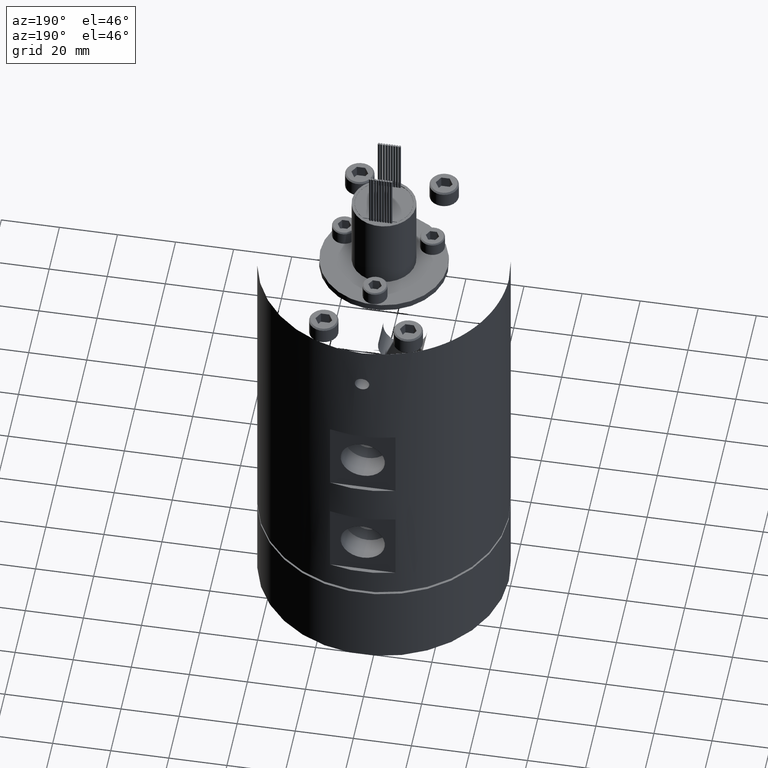
[diagram: clean part render]
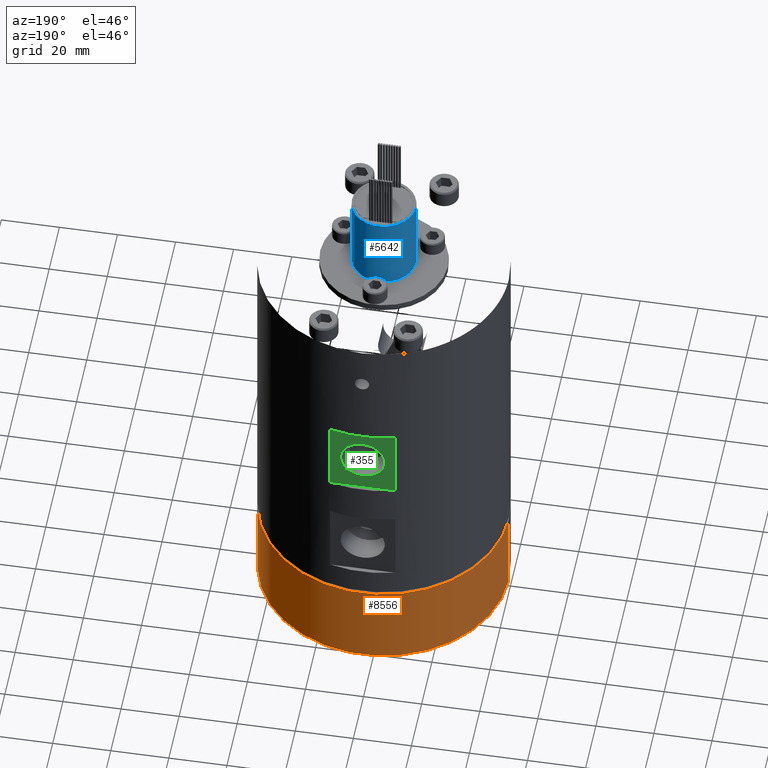
[diagram: same view with three faces highlighted in distinct colors, each labeled with its STEP entity id]
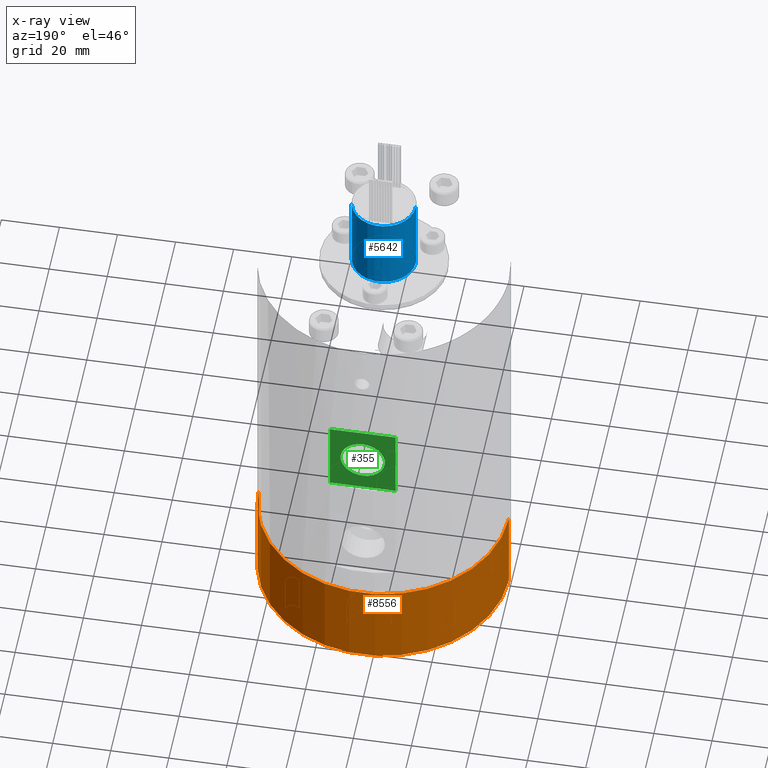
[diagram: x-ray of the same camera — body ghosted, the three highlighted faces saturated]
A machine part, auxiliary view with three faces highlighted in distinct colors.
The next image is the same camera in x-ray (body ghosted, the three faces saturated) — at least one of them is partly hidden behind the body in this view.
Their STEP definitions:

[orange] entity #8556 — the highlighted cylindrical surface (partial cylindrical patch) has radius 43 mm, axis along (-0, -0, -1).
#318 = CARTESIAN_POINT ( 'NONE',  ( 43.00000000000000000, 5.265981236333618500E-015, 30.00000000000000000 ) ) ;
#376 = AXIS2_PLACEMENT_3D ( 'NONE', #6539, #2420, #7245 ) ;
#399 = DIRECTION ( 'NONE',  ( 0.0000000000000000000, 0.0000000000000000000, 1.000000000000000000 ) ) ;
#510 = VERTEX_POINT ( 'NONE', #1436 ) ;
#771 = CYLINDRICAL_SURFACE ( 'NONE', #5526, 43.00000000000000000 ) ;
#1167 = EDGE_LOOP ( 'NONE', ( #3262, #3686, #8413, #2820 ) ) ;
#1436 = CARTESIAN_POINT ( 'NONE',  ( -43.00000000000000000, 0.0000000000000000000, 30.00000000000000000 ) ) ;
#1478 = VECTOR ( 'NONE', #5209, 1000.000000000000000 ) ;
#1890 = CARTESIAN_POINT ( 'NONE',  ( -43.00000000000000000, 0.0000000000000000000, 30.00000000000000000 ) ) ;
#2420 = DIRECTION ( 'NONE',  ( 0.0000000000000000000, 0.0000000000000000000, 1.000000000000000000 ) ) ;
#2596 = DIRECTION ( 'NONE',  ( -0.0000000000000000000, -0.0000000000000000000, -1.000000000000000000 ) ) ;
#2670 = CARTESIAN_POINT ( 'NONE',  ( 43.00000000000000000, 5.265981236333618500E-015, 30.00000000000000000 ) ) ;
#2713 = VERTEX_POINT ( 'NONE', #6260 ) ;
#2820 = ORIENTED_EDGE ( 'NONE', *, *, #4099, .F. ) ;
#3262 = ORIENTED_EDGE ( 'NONE', *, *, #6507, .F. ) ;
#3357 = LINE ( 'NONE', #318, #1478 ) ;
#3686 = ORIENTED_EDGE ( 'NONE', *, *, #9033, .T. ) ;
#4099 = EDGE_CURVE ( 'NONE', #510, #7111, #5672, .T. ) ;
#4367 = AXIS2_PLACEMENT_3D ( 'NONE', #4596, #399, #5279 ) ;
#4596 = CARTESIAN_POINT ( 'NONE',  ( 0.0000000000000000000, 0.0000000000000000000, 0.0000000000000000000 ) ) ;
#5062 = CIRCLE ( 'NONE', #376, 43.00000000000000000 ) ;
#5209 = DIRECTION ( 'NONE',  ( -0.0000000000000000000, -0.0000000000000000000, -1.000000000000000000 ) ) ;
#5279 = DIRECTION ( 'NONE',  ( 1.000000000000000000, 0.0000000000000000000, 0.0000000000000000000 ) ) ;
#5474 = VECTOR ( 'NONE', #2596, 1000.000000000000000 ) ;
#5526 = AXIS2_PLACEMENT_3D ( 'NONE', #5949, #7339, #5919 ) ;
#5672 = LINE ( 'NONE', #1890, #5474 ) ;
#5919 = DIRECTION ( 'NONE',  ( -1.000000000000000000, 0.0000000000000000000, 0.0000000000000000000 ) ) ;
#5949 = CARTESIAN_POINT ( 'NONE',  ( 0.0000000000000000000, 0.0000000000000000000, 30.00000000000000000 ) ) ;
#6260 = CARTESIAN_POINT ( 'NONE',  ( 43.00000000000000000, 5.265981236333618500E-015, 0.0000000000000000000 ) ) ;
#6507 = EDGE_CURVE ( 'NONE', #8655, #510, #5062, .T. ) ;
#6525 = FACE_OUTER_BOUND ( 'NONE', #1167, .T. ) ;
#6539 = CARTESIAN_POINT ( 'NONE',  ( 0.0000000000000000000, 0.0000000000000000000, 30.00000000000000000 ) ) ;
#7111 = VERTEX_POINT ( 'NONE', #8596 ) ;
#7245 = DIRECTION ( 'NONE',  ( 1.000000000000000000, 0.0000000000000000000, 0.0000000000000000000 ) ) ;
#7339 = DIRECTION ( 'NONE',  ( -0.0000000000000000000, -0.0000000000000000000, -1.000000000000000000 ) ) ;
#7627 = EDGE_CURVE ( 'NONE', #2713, #7111, #7970, .T. ) ;
#7970 = CIRCLE ( 'NONE', #4367, 43.00000000000000000 ) ;
#8413 = ORIENTED_EDGE ( 'NONE', *, *, #7627, .T. ) ;
#8556 = ADVANCED_FACE ( 'NONE', ( #6525 ), #771, .T. ) ;
#8596 = CARTESIAN_POINT ( 'NONE',  ( -43.00000000000000000, 0.0000000000000000000, 0.0000000000000000000 ) ) ;
#8655 = VERTEX_POINT ( 'NONE', #2670 ) ;
#9033 = EDGE_CURVE ( 'NONE', #8655, #2713, #3357, .T. ) ;

[blue] entity #5642 — the highlighted cylindrical surface (edge-blend (fillet) strip) has radius 11 mm, axis along (-0, -0, -1).
#320 = VERTEX_POINT ( 'NONE', #8252 ) ;
#357 = ORIENTED_EDGE ( 'NONE', *, *, #393, .T. ) ;
#393 = EDGE_CURVE ( 'NONE', #6244, #4986, #7392, .T. ) ;
#491 = AXIS2_PLACEMENT_3D ( 'NONE', #942, #5801, #1652 ) ;
#942 = CARTESIAN_POINT ( 'NONE',  ( 0.0000000000000000000, 0.0000000000000000000, 149.4000000000000300 ) ) ;
#1354 = CARTESIAN_POINT ( 'NONE',  ( 11.00000000000000000, 1.347111479062088400E-015, 176.5000000000000300 ) ) ;
#1555 = CARTESIAN_POINT ( 'NONE',  ( 11.00000000000000000, 1.347111479062088400E-015, 149.4000000000000300 ) ) ;
#1652 = DIRECTION ( 'NONE',  ( 1.000000000000000000, 0.0000000000000000000, 0.0000000000000000000 ) ) ;
#1940 = DIRECTION ( 'NONE',  ( 0.0000000000000000000, 0.0000000000000000000, 1.000000000000000000 ) ) ;
#2158 = CYLINDRICAL_SURFACE ( 'NONE', #3898, 11.00000000000000000 ) ;
#2900 = CARTESIAN_POINT ( 'NONE',  ( 0.0000000000000000000, 0.0000000000000000000, 176.5000000000000300 ) ) ;
#3861 = EDGE_CURVE ( 'NONE', #5813, #320, #3974, .T. ) ;
#3898 = AXIS2_PLACEMENT_3D ( 'NONE', #2900, #4287, #8388 ) ;
#3927 = CARTESIAN_POINT ( 'NONE',  ( -11.00000000000000000, 0.0000000000000000000, 176.5000000000000300 ) ) ;
#3974 = LINE ( 'NONE', #3927, #7416 ) ;
#4287 = DIRECTION ( 'NONE',  ( -0.0000000000000000000, -0.0000000000000000000, -1.000000000000000000 ) ) ;
#4303 = CIRCLE ( 'NONE', #491, 11.00000000000000000 ) ;
#4525 = CARTESIAN_POINT ( 'NONE',  ( -11.00000000000000000, 0.0000000000000000000, 176.5000000000000300 ) ) ;
#4616 = EDGE_CURVE ( 'NONE', #6244, #5813, #8276, .T. ) ;
#4986 = VERTEX_POINT ( 'NONE', #1555 ) ;
#5642 = ADVANCED_FACE ( 'NONE', ( #8114 ), #2158, .T. ) ;
#5762 = VECTOR ( 'NONE', #6850, 1000.000000000000000 ) ;
#5801 = DIRECTION ( 'NONE',  ( -0.0000000000000000000, -0.0000000000000000000, -1.000000000000000000 ) ) ;
#5813 = VERTEX_POINT ( 'NONE', #4525 ) ;
#6074 = CARTESIAN_POINT ( 'NONE',  ( 0.0000000000000000000, 0.0000000000000000000, 176.5000000000000300 ) ) ;
#6244 = VERTEX_POINT ( 'NONE', #1354 ) ;
#6453 = AXIS2_PLACEMENT_3D ( 'NONE', #6074, #1940, #6776 ) ;
#6497 = ORIENTED_EDGE ( 'NONE', *, *, #7082, .F. ) ;
#6776 = DIRECTION ( 'NONE',  ( 1.000000000000000000, 0.0000000000000000000, 0.0000000000000000000 ) ) ;
#6850 = DIRECTION ( 'NONE',  ( -0.0000000000000000000, -0.0000000000000000000, -1.000000000000000000 ) ) ;
#7082 = EDGE_CURVE ( 'NONE', #320, #4986, #4303, .T. ) ;
#7392 = LINE ( 'NONE', #8250, #5762 ) ;
#7416 = VECTOR ( 'NONE', #8753, 1000.000000000000000 ) ;
#8101 = EDGE_LOOP ( 'NONE', ( #9027, #357, #6497, #8797 ) ) ;
#8114 = FACE_OUTER_BOUND ( 'NONE', #8101, .T. ) ;
#8250 = CARTESIAN_POINT ( 'NONE',  ( 11.00000000000000000, 1.347111479062088400E-015, 176.5000000000000300 ) ) ;
#8252 = CARTESIAN_POINT ( 'NONE',  ( -11.00000000000000000, 0.0000000000000000000, 149.4000000000000300 ) ) ;
#8276 = CIRCLE ( 'NONE', #6453, 11.00000000000000000 ) ;
#8388 = DIRECTION ( 'NONE',  ( -1.000000000000000000, 0.0000000000000000000, 0.0000000000000000000 ) ) ;
#8753 = DIRECTION ( 'NONE',  ( -0.0000000000000000000, -0.0000000000000000000, -1.000000000000000000 ) ) ;
#8797 = ORIENTED_EDGE ( 'NONE', *, *, #3861, .F. ) ;
#9027 = ORIENTED_EDGE ( 'NONE', *, *, #4616, .F. ) ;

[green] entity #355 — the highlighted planar face has unit normal (0, 1, 0).
#355 = ADVANCED_FACE ( 'NONE', ( #651, #7619 ), #3454, .T. ) ;
#493 = CARTESIAN_POINT ( 'NONE',  ( 11.25833024919767300, 41.50000000000000000, 106.3999999999999900 ) ) ;
#646 = DIRECTION ( 'NONE',  ( 0.0000000000000000000, -0.0000000000000000000, 1.000000000000000000 ) ) ;
#651 = FACE_BOUND ( 'NONE', #3522, .T. ) ;
#702 = CARTESIAN_POINT ( 'NONE',  ( -45.75677193840251500, 41.50000000000000000, 80.40000000000000600 ) ) ;
#705 = CARTESIAN_POINT ( 'NONE',  ( -5.337610695313253800E-015, 41.50000000000000000, 101.0249999999999900 ) ) ;
#1148 = EDGE_CURVE ( 'NONE', #6152, #8341, #5233, .T. ) ;
#1490 = ORIENTED_EDGE ( 'NONE', *, *, #6188, .F. ) ;
#1518 = VECTOR ( 'NONE', #6692, 1000.000000000000000 ) ;
#1582 = VERTEX_POINT ( 'NONE', #8184 ) ;
#1773 = LINE ( 'NONE', #702, #1995 ) ;
#1995 = VECTOR ( 'NONE', #8303, 1000.000000000000000 ) ;
#2409 = CARTESIAN_POINT ( 'NONE',  ( -11.25833024919767700, 41.50000000000000000, 147.0000000000000300 ) ) ;
#2570 = LINE ( 'NONE', #2409, #7855 ) ;
#2618 = DIRECTION ( 'NONE',  ( 1.000000000000000000, 0.0000000000000000000, 0.0000000000000000000 ) ) ;
#2771 = CARTESIAN_POINT ( 'NONE',  ( -4.403817510963396700E-015, 41.50000000000000000, 85.77500000000000600 ) ) ;
#2956 = CARTESIAN_POINT ( 'NONE',  ( -5.337610695313253800E-015, 41.50000000000000000, 93.39999999999999100 ) ) ;
#3209 = VECTOR ( 'NONE', #2618, 1000.000000000000000 ) ;
#3270 = VERTEX_POINT ( 'NONE', #3443 ) ;
#3299 = VERTEX_POINT ( 'NONE', #2771 ) ;
#3417 = ORIENTED_EDGE ( 'NONE', *, *, #3537, .T. ) ;
#3427 = CARTESIAN_POINT ( 'NONE',  ( -5.337610695313253800E-015, 41.50000000000000000, 93.39999999999999100 ) ) ;
#3443 = CARTESIAN_POINT ( 'NONE',  ( -11.25833024919767300, 41.50000000000000000, 106.3999999999999900 ) ) ;
#3454 = PLANE ( 'NONE',  #4166 ) ;
#3522 = EDGE_LOOP ( 'NONE', ( #5439, #1490 ) ) ;
#3537 = EDGE_CURVE ( 'NONE', #8341, #1582, #1773, .T. ) ;
#3653 = DIRECTION ( 'NONE',  ( 0.0000000000000000000, 0.0000000000000000000, 1.000000000000000000 ) ) ;
#3750 = EDGE_CURVE ( 'NONE', #1582, #3270, #2570, .T. ) ;
#4116 = DIRECTION ( 'NONE',  ( 0.0000000000000000000, 0.0000000000000000000, 1.000000000000000000 ) ) ;
#4166 = AXIS2_PLACEMENT_3D ( 'NONE', #6182, #4848, #646 ) ;
#4365 = CARTESIAN_POINT ( 'NONE',  ( 11.25833024919768000, 41.50000000000000000, 80.40000000000000600 ) ) ;
#4423 = CIRCLE ( 'NONE', #6305, 7.624999999999992900 ) ;
#4585 = EDGE_CURVE ( 'NONE', #3270, #6152, #4826, .T. ) ;
#4658 = CARTESIAN_POINT ( 'NONE',  ( 11.25833024919767700, 41.50000000000000000, 147.0000000000000300 ) ) ;
#4826 = LINE ( 'NONE', #6744, #3209 ) ;
#4848 = DIRECTION ( 'NONE',  ( 0.0000000000000000000, 1.000000000000000000, 0.0000000000000000000 ) ) ;
#5233 = LINE ( 'NONE', #4658, #1518 ) ;
#5439 = ORIENTED_EDGE ( 'NONE', *, *, #7002, .F. ) ;
#6152 = VERTEX_POINT ( 'NONE', #493 ) ;
#6182 = CARTESIAN_POINT ( 'NONE',  ( -5.337610695313253800E-015, 41.50000000000000000, 40.00000000000000000 ) ) ;
#6188 = EDGE_CURVE ( 'NONE', #3299, #7366, #4423, .T. ) ;
#6303 = ORIENTED_EDGE ( 'NONE', *, *, #1148, .T. ) ;
#6305 = AXIS2_PLACEMENT_3D ( 'NONE', #3427, #8249, #4116 ) ;
#6402 = EDGE_LOOP ( 'NONE', ( #6303, #3417, #8339, #7222 ) ) ;
#6692 = DIRECTION ( 'NONE',  ( -0.0000000000000000000, -0.0000000000000000000, -1.000000000000000000 ) ) ;
#6744 = CARTESIAN_POINT ( 'NONE',  ( -45.75677193840252200, 41.50000000000000000, 106.3999999999999900 ) ) ;
#6999 = CIRCLE ( 'NONE', #7180, 7.624999999999992900 ) ;
#7002 = EDGE_CURVE ( 'NONE', #7366, #3299, #6999, .T. ) ;
#7180 = AXIS2_PLACEMENT_3D ( 'NONE', #2956, #7787, #3653 ) ;
#7222 = ORIENTED_EDGE ( 'NONE', *, *, #4585, .T. ) ;
#7366 = VERTEX_POINT ( 'NONE', #705 ) ;
#7619 = FACE_OUTER_BOUND ( 'NONE', #6402, .T. ) ;
#7787 = DIRECTION ( 'NONE',  ( 0.0000000000000000000, 1.000000000000000000, 0.0000000000000000000 ) ) ;
#7855 = VECTOR ( 'NONE', #8632, 1000.000000000000000 ) ;
#8184 = CARTESIAN_POINT ( 'NONE',  ( -11.25833024919767700, 41.50000000000000000, 80.40000000000000600 ) ) ;
#8249 = DIRECTION ( 'NONE',  ( 0.0000000000000000000, 1.000000000000000000, 0.0000000000000000000 ) ) ;
#8303 = DIRECTION ( 'NONE',  ( -1.000000000000000000, -0.0000000000000000000, -0.0000000000000000000 ) ) ;
#8339 = ORIENTED_EDGE ( 'NONE', *, *, #3750, .T. ) ;
#8341 = VERTEX_POINT ( 'NONE', #4365 ) ;
#8632 = DIRECTION ( 'NONE',  ( 0.0000000000000000000, 0.0000000000000000000, 1.000000000000000000 ) ) ;